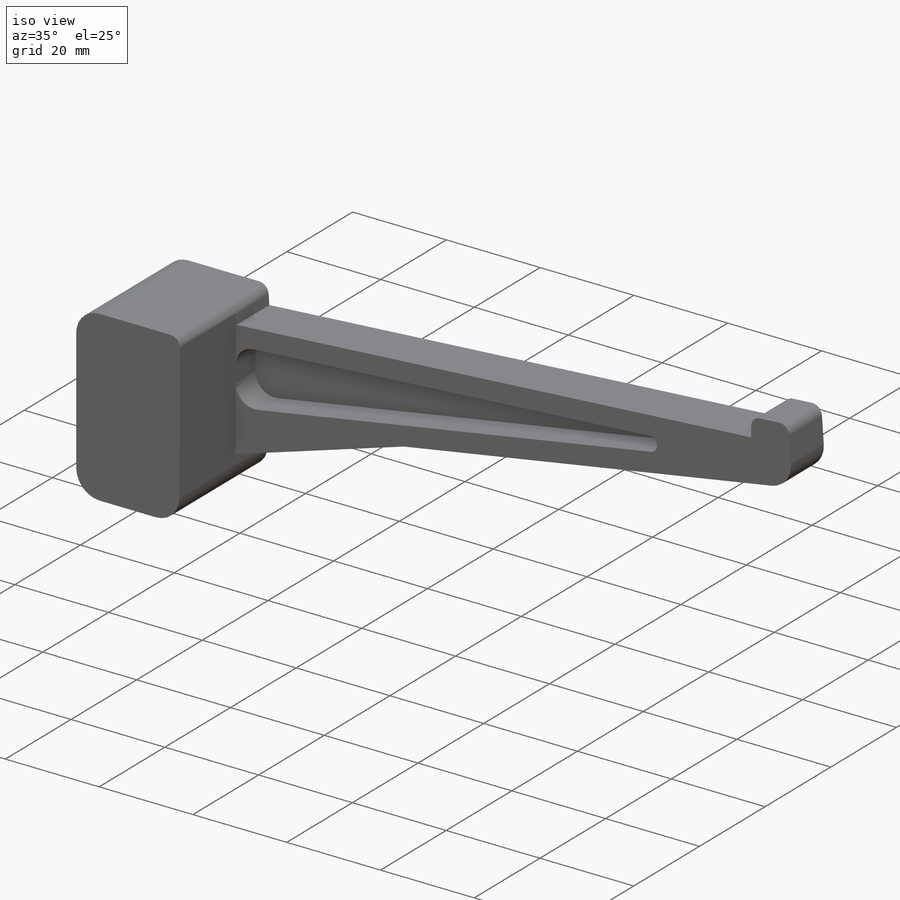
[diagram: iso view]
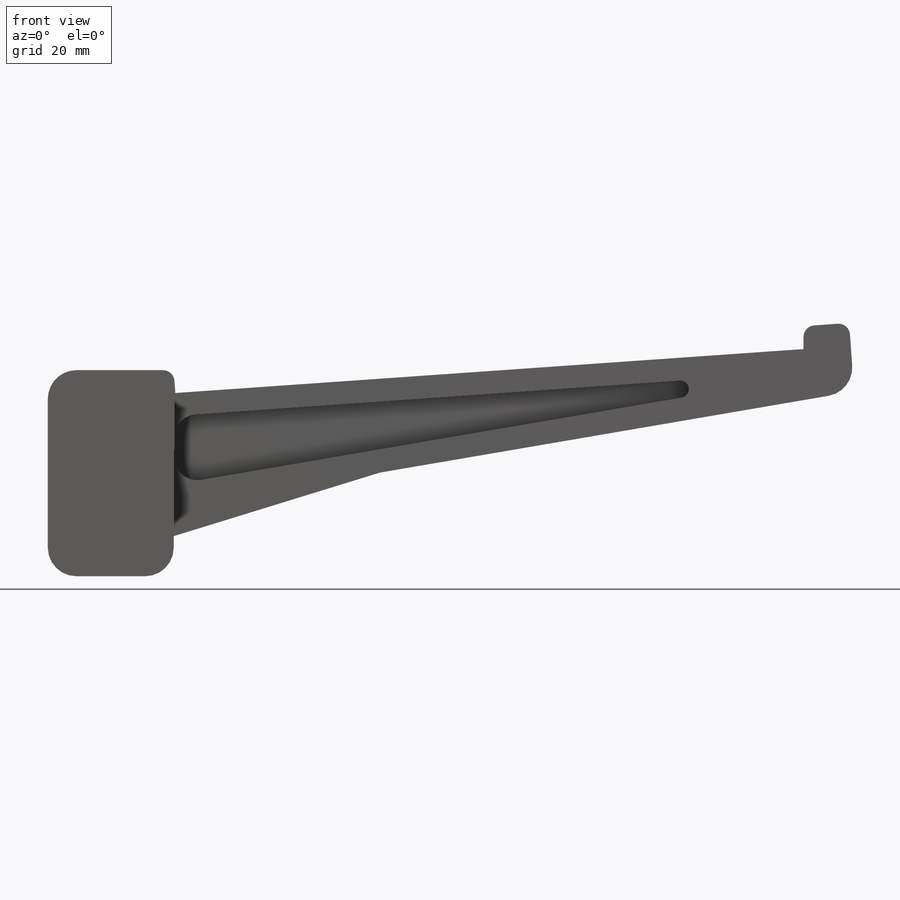
[diagram: front view]
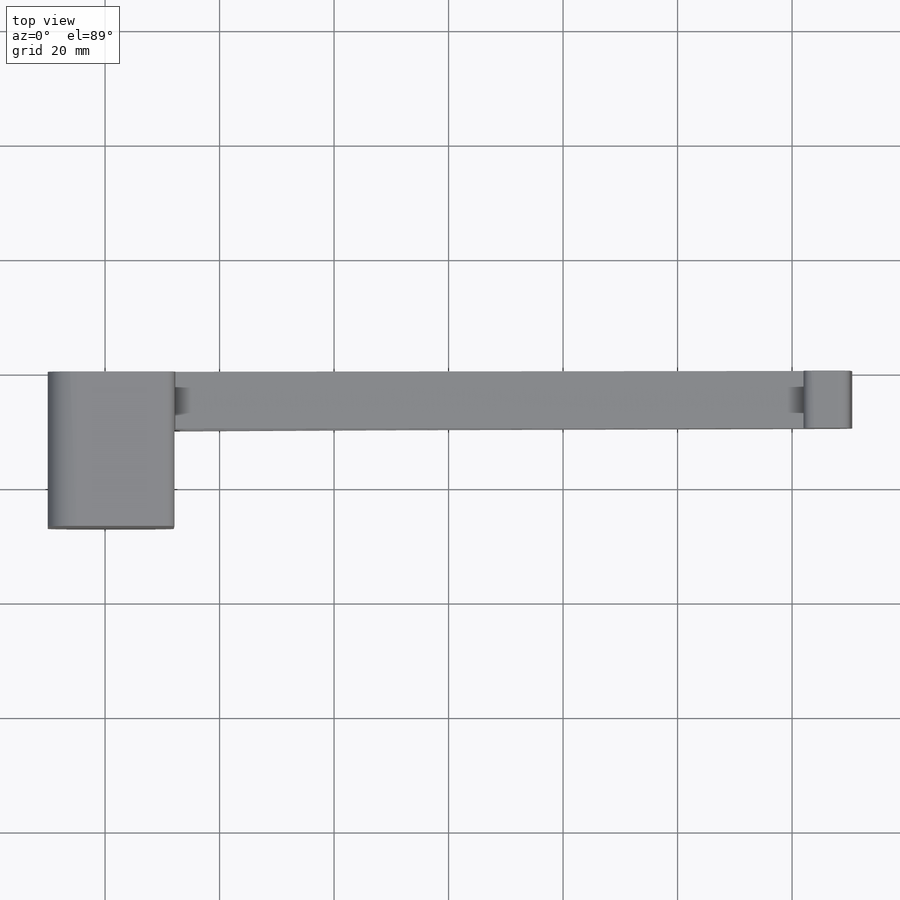
[diagram: top view]
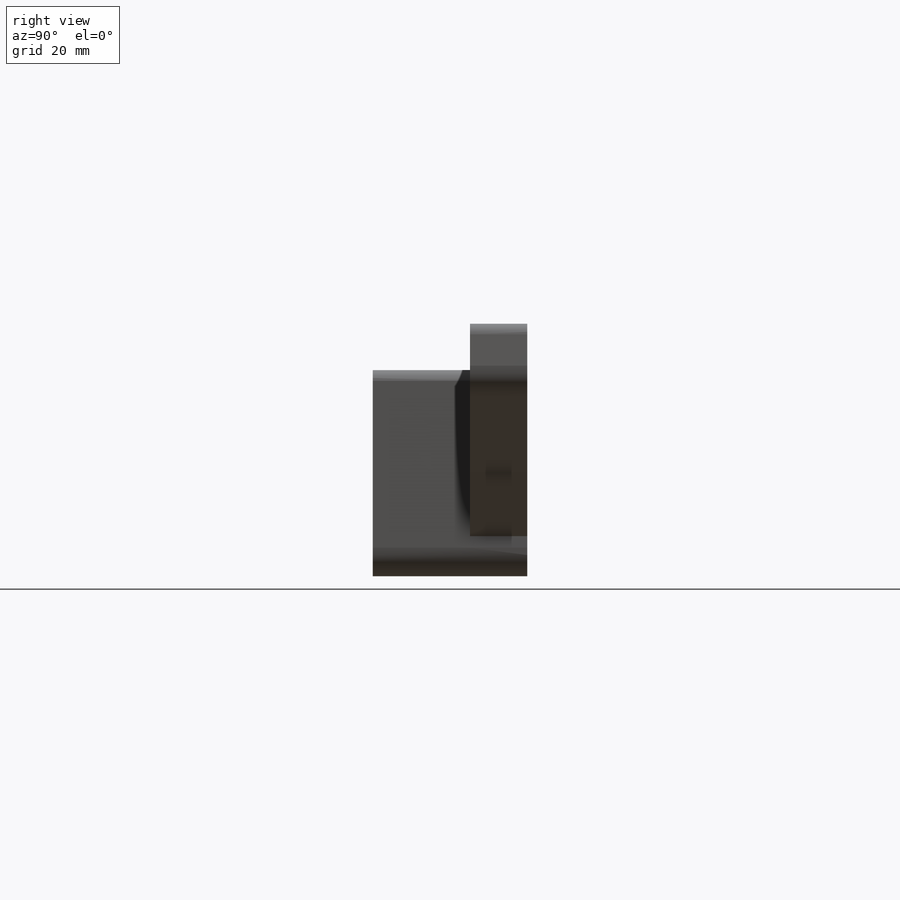
[diagram: right view]
SOLIDWORKS PART (.sldprt)
format: sldprt  version: not decoded by parser v0  size: 279,552 bytes
history: native  units: mm
features: sketch x5, extrude x4, material x1, cut_extrude x1 (+11 scaffold rows collapsed)
feature tree (22):
  scaffold x11  (default folders/planes/origin — collapsed)
  material  "Material <not specified>"
  sketch  "Sketch1"  dims[c1.D2=6.0mm c1.D13=5.0mm c1.D14=2.0mm c1.D19=2.0mm c1.D1=18.0mm c1.D3=12.0mm c1.D4=10.0mm c1.D5=10.0mm c1.D6=8.0mm c1.D7=4.0mm c1.D8=110.0mm c1.D9=~21.427745mm c2.D9=4.0deg c2.D10=8.0mm c2.D11=12.0mm c2.D12=20.0mm c2.D2=10.0mm c2.D3=26.0mm c2.D4=6.0mm c2.D5=6.0mm c2.D6=7.0mm c2.D15=10.0mm c2.D16=12.0mm c2.D17=9.0mm c2.D18=22.0mm]
  extrude  "Boss-Extrude1"  Depth=10mm
  sketch  "Sketch4"  dims[D1=25.0mm D2=36.0mm]
  extrude  "Boss-Extrude2"  [1 undecoded]
  sketch  "Sketch5"
  extrude  "Boss-Extrude3"  Depth=15mm
  sketch  "Sketch6"
  extrude  "Boss-Extrude4"  Depth=2mm
  sketch  "Sketch2"  dims[D1=1.5mm D4=4.0mm D2=4.0mm D3=4.0mm]
  cut_extrude  "Cut-Extrude1"  Depth=4mm
decode coverage: 7 of 10 modeling features carry decoded parameters
note: ~ marks probable driven/reference dimensions
note: 1 parameter value undecoded
note: suppression state not decoded; provenance and decode notes live in map.json
